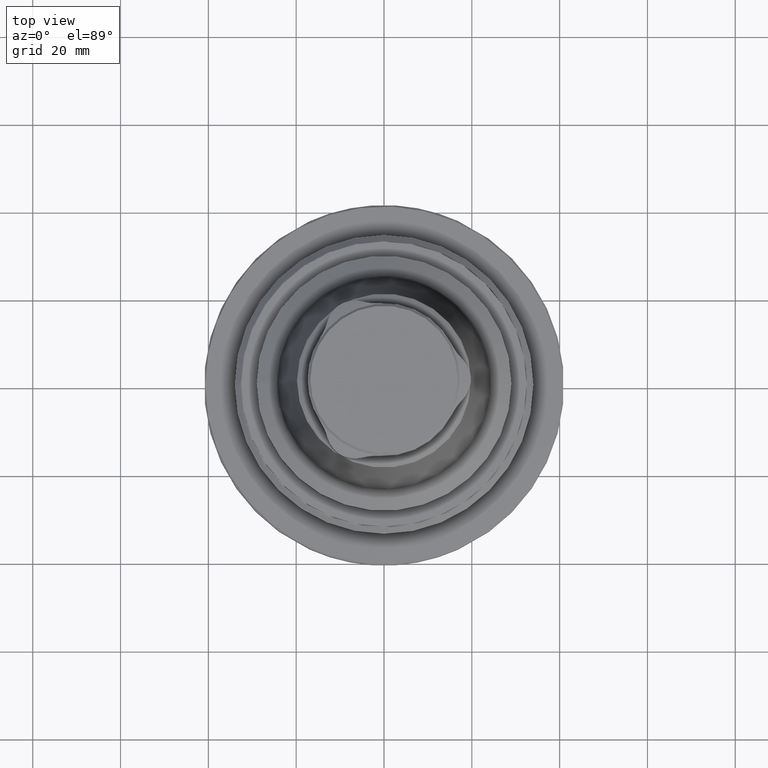
[diagram: clean part render]
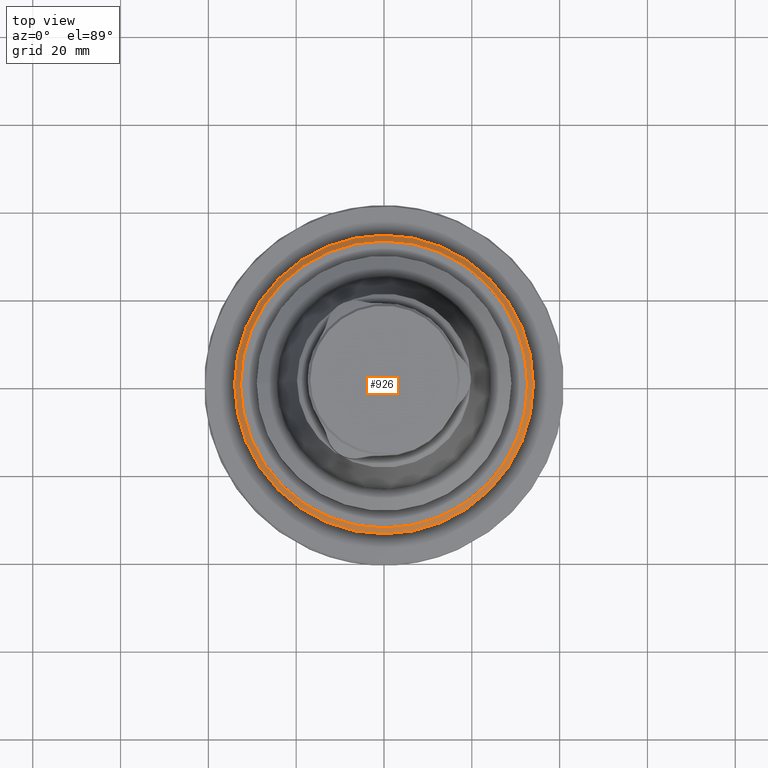
[diagram: same view with one face highlighted and labeled with its STEP entity id]
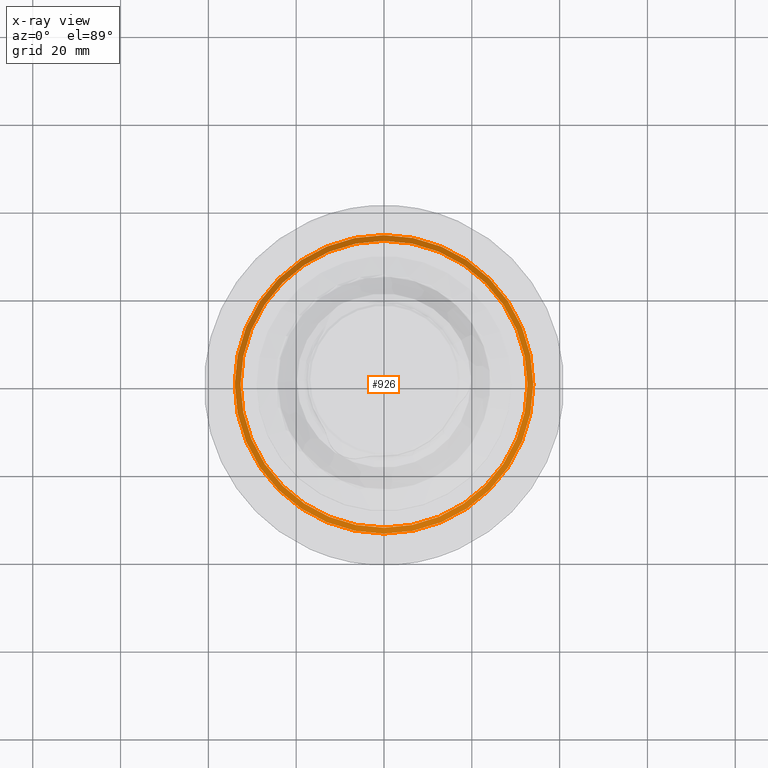
[diagram: x-ray of the same camera — body ghosted, the highlighted face saturated]
A machine part, top view. The second image highlights one B-rep face of the part: STEP entity #926.
The next image is the same camera in x-ray: the body ghosted, the highlighted face saturated — about 0% of this face is hidden behind the body in this view.
In plain terms, the highlighted conical surface has half-angle 45 deg.
Its self-contained STEP definition (entity closure, byte-faithful):
#91=CONICAL_SURFACE('',#1029,32.6757350979542,0.785398163397448);
#137=CIRCLE('',#1028,34.);
#138=CIRCLE('',#1030,32.6757350979542);
#286=ORIENTED_EDGE('',*,*,#477,.F.);
#287=ORIENTED_EDGE('',*,*,#478,.T.);
#477=EDGE_CURVE('',#586,#586,#137,.T.);
#478=EDGE_CURVE('',#587,#587,#138,.T.);
#586=VERTEX_POINT('',#1634);
#587=VERTEX_POINT('',#1637);
#720=EDGE_LOOP('',(#286));
#721=EDGE_LOOP('',(#287));
#817=FACE_BOUND('',#720,.T.);
#818=FACE_BOUND('',#721,.T.);
#926=ADVANCED_FACE('',(#817,#818),#91,.T.);
#1028=AXIS2_PLACEMENT_3D('',#1633,#1215,#1216);
#1029=AXIS2_PLACEMENT_3D('',#1635,#1217,#1218);
#1030=AXIS2_PLACEMENT_3D('',#1636,#1219,#1220);
#1215=DIRECTION('',(-7.30126435159279E-33,-9.52839055771651E-18,-1.));
#1216=DIRECTION('',(-1.,-8.32667268468868E-17,2.89465139560709E-33));
#1217=DIRECTION('',(-7.30126435159279E-33,-9.52839055771651E-18,-1.));
#1218=DIRECTION('',(-1.,-8.32667268468868E-17,2.89465139560709E-33));
#1219=DIRECTION('',(-7.30126435159279E-33,-9.52839055771651E-18,-1.));
#1220=DIRECTION('',(-1.,-8.32667268468868E-17,2.89465139560709E-33));
#1633=CARTESIAN_POINT('',(5.91402412479016E-32,-7.90094371143318E-15,7.09999999999999));
#1634=CARTESIAN_POINT('',(-34.,-1.07320124242273E-14,7.09999999999999));
#1635=CARTESIAN_POINT('',(6.88090493692744E-32,-7.88832559824462E-15,8.42426490204583));
#1636=CARTESIAN_POINT('',(6.88090493692744E-32,-7.88832559824462E-15,8.42426490204583));
#1637=CARTESIAN_POINT('',(-32.6757350979542,-1.06091271071672E-14,8.42426490204583));